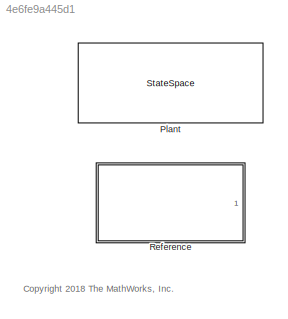
MODEL slx_4e6fe9a445d1
KIND library
CONFIG AbsTol = auto
CONFIG EnableMultiTasking = off
CONFIG FixedStep = auto
CONFIG MaxStep = auto
CONFIG MinStep = auto
CONFIG RelTol = 1e-3
CONFIG SampleTimeConstraint = Unconstrained
CONFIG Solver = VariableStepAuto
CONFIG SolverName = VariableStepAuto
CONFIG StartTime = 0.0
CONFIG StopTime = 10.0
BLOCK [StateSpace] Plant
  A = [-(2*Cf+2*Cr)/m/Vx, 0, -Vx-(2*Cf*lf-2*Cr*lr)/m/Vx, 0;\n     0, 0, 1, 0;\n     -(2*Cf*lf-2*Cr*lr)/Iz/Vx, 0, -(2*Cf*lf^2+2*Cr*lr^2)/Iz/Vx, 0;\n     1, Vx, 0, 0];
  B = [2*Cf/m 0 2*Cf*lf/Iz 0]';
  C = [0 0 0 1; 0 1 0 0];
  D = [0;0]
  InitialCondition = 0
  Ports = [1, 1]
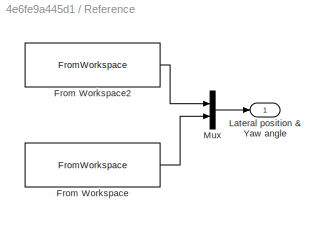
BLOCK [SubSystem] Reference
  Ports = [0, 1]
  RequestExecContextInheritance = off
BLOCK [FromWorkspace] Reference/From Workspace
  SampleTime = 0.1
  VariableName = [t', deg2rad(yawRef)']
  ZeroCross = on
BLOCK [FromWorkspace] Reference/From Workspace2
  SampleTime = 0.1
  VariableName = [t', posRef(:,2)]
  ZeroCross = on
BLOCK [Outport] Reference/Lateral position & Yaw angle
  IconDisplay = Port number
BLOCK [Mux] Reference/Mux
  DisplayOption = bar
  Inputs = 2
  Ports = [2, 1]
ANNOTATION (root): <copyright redacted>
LINE Reference/From Workspace2:1 -> Reference/Mux:1
LINE Reference/From Workspace:1 -> Reference/Mux:2
LINE Reference/Mux:1 -> Reference/Lateral position & Yaw angle:1
